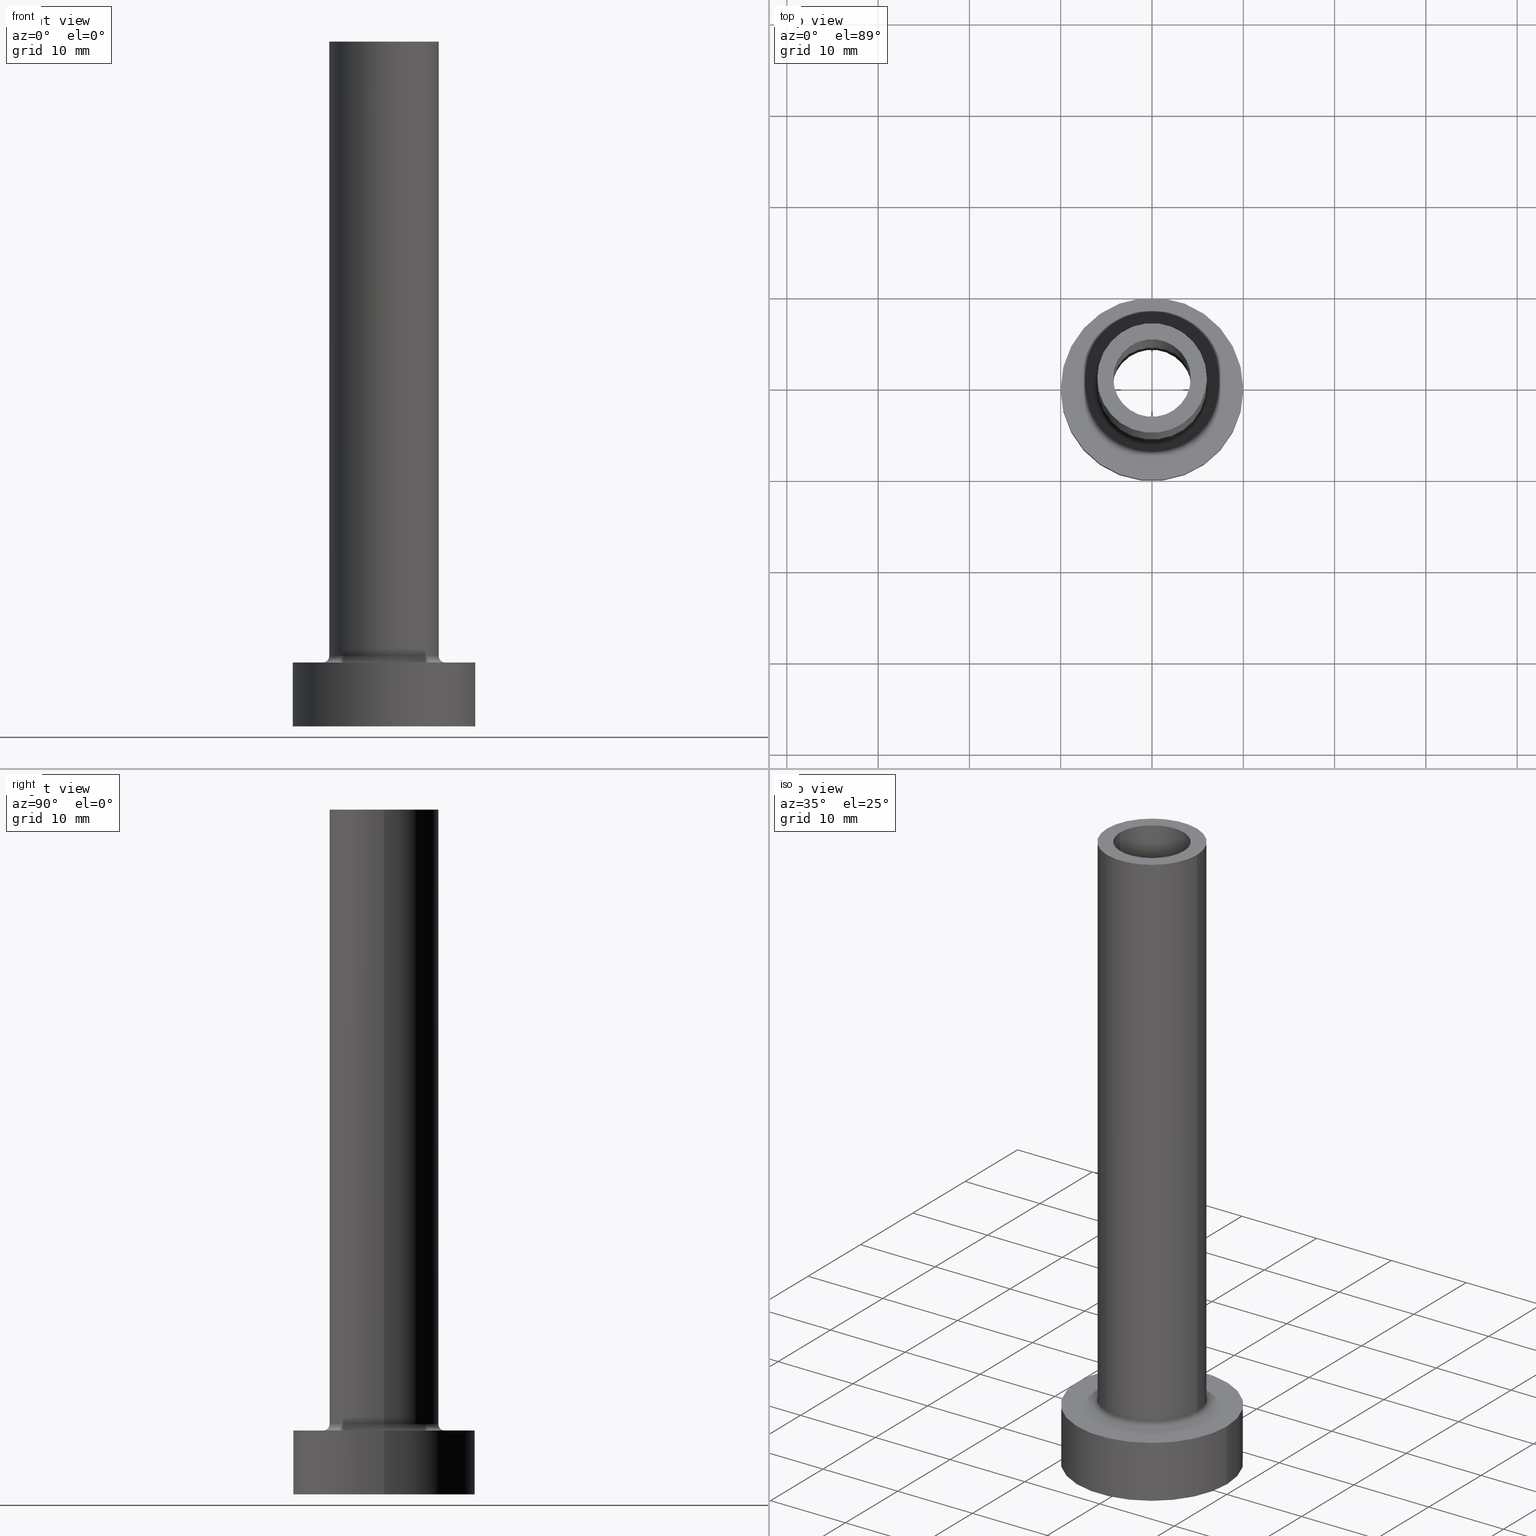
[diagram: canonical four-view strip — front | top / right | iso, engineering-drawing reading convention]
A machine part, canonical four-view strip (front | top / right | iso — engineering-drawing reading convention). The complete STEP part file that produces these views, byte-faithful:
ISO-10303-21;
HEADER;
FILE_DESCRIPTION (( 'STEP AP203' ),
    '1' );
FILE_NAME ('effc.STEP',
    '2023-02-13T07:37:39',
    ( '' ),
    ( '' ),
    'SwSTEP 2.0',
    'SolidWorks 2019',
    '' );
FILE_SCHEMA (( 'CONFIG_CONTROL_DESIGN' ));
ENDSEC;

DATA;
#1 = CLOSED_SHELL ( 'NONE', ( #246, #278, #248, #60, #266, #161, #102, #426, #370, #131, #198, #19, #447, #98 ) ) ;
#2 = CC_DESIGN_APPROVAL ( #348, ( #81 ) ) ;
#3 = EDGE_LOOP ( 'NONE', ( #178, #320, #31, #36 ) ) ;
#4 = CARTESIAN_POINT ( 'NONE',  ( -4.400000000000000355, 0.000000000000000000, 30.00000000000001421 ) ) ;
#5 = EDGE_LOOP ( 'NONE', ( #453, #105, #40, #360 ) ) ;
#6 = ORIENTED_EDGE ( 'NONE', *, *, #69, .T. ) ;
#7 = APPROVAL_DATE_TIME ( #438, #348 ) ;
#8 = FACE_BOUND ( 'NONE', #325, .T. ) ;
#9 = VERTEX_POINT ( 'NONE', #312 ) ;
#10 = EDGE_CURVE ( 'NONE', #145, #291, #234, .T. ) ;
#11 = CARTESIAN_POINT ( 'NONE',  ( 0.000000000000000000, 0.000000000000000000, 42.44507934888325451 ) ) ;
#12 = CIRCLE ( 'NONE', #39, 4.400000000000000355 ) ;
#13 = EDGE_CURVE ( 'NONE', #294, #9, #428, .T. ) ;
#14 = DIRECTION ( 'NONE',  ( 0.000000000000000000, 0.000000000000000000, -1.000000000000000000 ) ) ;
#15 = FACE_BOUND ( 'NONE', #213, .T. ) ;
#16 = EDGE_CURVE ( 'NONE', #368, #27, #338, .T. ) ;
#17 = FACE_BOUND ( 'NONE', #79, .T. ) ;
#18 = CYLINDRICAL_SURFACE ( 'NONE', #247, 4.250000000000000000 ) ;
#19 = ADVANCED_FACE ( 'NONE', ( #207 ), #344, .F. ) ;
#20 = FACE_OUTER_BOUND ( 'NONE', #68, .T. ) ;
#21 = CARTESIAN_POINT ( 'NONE',  ( 0.000000000000000000, 0.000000000000000000, 75.00000000000001421 ) ) ;
#22 = DIRECTION ( 'NONE',  ( 1.000000000000000000, 0.000000000000000000, 0.000000000000000000 ) ) ;
#23 = EDGE_LOOP ( 'NONE', ( #432, #285 ) ) ;
#24 = PERSON_AND_ORGANIZATION_ROLE ( 'design_owner' ) ;
#25 = DIRECTION ( 'NONE',  ( 1.000000000000000000, 0.000000000000000000, 0.000000000000000000 ) ) ;
#26 = CC_DESIGN_PERSON_AND_ORGANIZATION_ASSIGNMENT ( #142, #364, ( #445 ) ) ;
#27 = VERTEX_POINT ( 'NONE', #420 ) ;
#28 = CIRCLE ( 'NONE', #300, 10.00000000000000000 ) ;
#29 = ORIENTED_EDGE ( 'NONE', *, *, #16, .T. ) ;
#30 = DIRECTION ( 'NONE',  ( 1.000000000000000000, 0.000000000000000000, 0.000000000000000000 ) ) ;
#31 = ORIENTED_EDGE ( 'NONE', *, *, #69, .F. ) ;
#32 = PERSON_AND_ORGANIZATION_ROLE ( 'classification_officer' ) ;
#33 = DIRECTION ( 'NONE',  ( 1.000000000000000000, 0.000000000000000000, 0.000000000000000000 ) ) ;
#34 = CC_DESIGN_APPROVAL ( #336, ( #417 ) ) ;
#35 = VERTEX_POINT ( 'NONE', #107 ) ;
#36 = ORIENTED_EDGE ( 'NONE', *, *, #452, .F. ) ;
#37 = COORDINATED_UNIVERSAL_TIME_OFFSET ( 1, 0, .AHEAD. ) ;
#38 = DIRECTION ( 'NONE',  ( 0.000000000000000000, 0.000000000000000000, -1.000000000000000000 ) ) ;
#39 = AXIS2_PLACEMENT_3D ( 'NONE', #455, #215, #25 ) ;
#40 = ORIENTED_EDGE ( 'NONE', *, *, #210, .T. ) ;
#41 = EDGE_CURVE ( 'NONE', #288, #294, #239, .T. ) ;
#42 = DIRECTION ( 'NONE',  ( -0.000000000000000000, -0.000000000000000000, -1.000000000000000000 ) ) ;
#43 = ORIENTED_EDGE ( 'NONE', *, *, #310, .T. ) ;
#44 = DIRECTION ( 'NONE',  ( 0.000000000000000000, 0.000000000000000000, 1.000000000000000000 ) ) ;
#45 = DIRECTION ( 'NONE',  ( -1.000000000000000000, 0.000000000000000000, 0.000000000000000000 ) ) ;
#46 = ORIENTED_EDGE ( 'NONE', *, *, #210, .F. ) ;
#47 = AXIS2_PLACEMENT_3D ( 'NONE', #190, #331, #155 ) ;
#48 = CARTESIAN_POINT ( 'NONE',  ( 4.250000000000000000, 5.204748896376249713E-16, 30.00000000000001421 ) ) ;
#49 = CARTESIAN_POINT ( 'NONE',  ( -6.000000000000000888, 0.000000000000000000, 7.699999999999998401 ) ) ;
#50 = CIRCLE ( 'NONE', #159, 4.250000000000000000 ) ;
#51 = LINE ( 'NONE', #196, #449 ) ;
#52 = DIRECTION ( 'NONE',  ( 0.000000000000000000, 0.000000000000000000, 1.000000000000000000 ) ) ;
#53 = EDGE_CURVE ( 'NONE', #35, #150, #275, .T. ) ;
#54 = FACE_OUTER_BOUND ( 'NONE', #295, .T. ) ;
#55 = CARTESIAN_POINT ( 'NONE',  ( -6.000000000000000888, 0.000000000000000000, 75.00000000000001421 ) ) ;
#56 = LOCAL_TIME ( 8, 37, 39.00000000000000000, #313 ) ;
#57 = DIRECTION ( 'NONE',  ( 0.000000000000000000, 0.000000000000000000, 1.000000000000000000 ) ) ;
#58 = DIRECTION ( 'NONE',  ( 1.000000000000000000, 0.000000000000000000, 0.000000000000000000 ) ) ;
#59 = CIRCLE ( 'NONE', #194, 4.250000000000000000 ) ;
#60 = ADVANCED_FACE ( 'NONE', ( #350 ), #240, .T. ) ;
#61 = PERSON_AND_ORGANIZATION ( #147, #97 ) ;
#62 = DIRECTION ( 'NONE',  ( -1.000000000000000000, 0.000000000000000000, 0.000000000000000000 ) ) ;
#63 = DIRECTION ( 'NONE',  ( 0.000000000000000000, 0.000000000000000000, 1.000000000000000000 ) ) ;
#64 = COORDINATED_UNIVERSAL_TIME_OFFSET ( 1, 0, .AHEAD. ) ;
#65 = AXIS2_PLACEMENT_3D ( 'NONE', #202, #419, #381 ) ;
#66 = DIRECTION ( 'NONE',  ( -0.000000000000000000, -0.000000000000000000, -1.000000000000000000 ) ) ;
#67 = CARTESIAN_POINT ( 'NONE',  ( 0.000000000000000000, 0.000000000000000000, 30.00000000000001421 ) ) ;
#68 = EDGE_LOOP ( 'NONE', ( #333, #461 ) ) ;
#69 = EDGE_CURVE ( 'NONE', #141, #186, #206, .T. ) ;
#70 = PERSON_AND_ORGANIZATION ( #147, #97 ) ;
#71 = ORIENTED_EDGE ( 'NONE', *, *, #357, .F. ) ;
#72 = ORIENTED_EDGE ( 'NONE', *, *, #41, .F. ) ;
#73 = PLANE ( 'NONE',  #322 ) ;
#74 = LOCAL_TIME ( 8, 37, 39.00000000000000000, #37 ) ;
#75 = ORIENTED_EDGE ( 'NONE', *, *, #261, .F. ) ;
#76 = PERSON_AND_ORGANIZATION ( #147, #97 ) ;
#77 = TOROIDAL_SURFACE ( 'NONE', #378, 6.700000000000001066, 0.6999999999999999556 ) ;
#78 = DIRECTION ( 'NONE',  ( 0.000000000000000000, 0.000000000000000000, 1.000000000000000000 ) ) ;
#79 = EDGE_LOOP ( 'NONE', ( #6, #108 ) ) ;
#80 = EDGE_LOOP ( 'NONE', ( #83, #222, #43, #46 ) ) ;
#81 = SECURITY_CLASSIFICATION ( '', '', #179 ) ;
#82 = ORIENTED_EDGE ( 'NONE', *, *, #261, .T. ) ;
#83 = ORIENTED_EDGE ( 'NONE', *, *, #16, .F. ) ;
#84 = LINE ( 'NONE', #401, #122 ) ;
#85 = AXIS2_PLACEMENT_3D ( 'NONE', #158, #90, #30 ) ;
#86 = DIRECTION ( 'NONE',  ( 1.000000000000000000, 0.000000000000000000, 0.000000000000000000 ) ) ;
#87 = PRODUCT_RELATED_PRODUCT_CATEGORY ( 'detail', '', ( #395 ) ) ;
#88 = UNCERTAINTY_MEASURE_WITH_UNIT (LENGTH_MEASURE( 1.000000000000000082E-05 ), #311, 'distance_accuracy_value', 'NONE');
#89 = ORIENTED_EDGE ( 'NONE', *, *, #113, .T. ) ;
#90 = DIRECTION ( 'NONE',  ( 0.000000000000000000, 0.000000000000000000, 1.000000000000000000 ) ) ;
#91 = DIRECTION ( 'NONE',  ( -1.000000000000000000, 0.000000000000000000, 0.000000000000000000 ) ) ;
#92 = CARTESIAN_POINT ( 'NONE',  ( 0.000000000000000000, 0.000000000000000000, 7.000000000000000000 ) ) ;
#93 = DIRECTION ( 'NONE',  ( -0.000000000000000000, -0.000000000000000000, -1.000000000000000000 ) ) ;
#94 = CYLINDRICAL_SURFACE ( 'NONE', #277, 4.250000000000000000 ) ;
#95 = DIRECTION ( 'NONE',  ( -0.000000000000000000, -0.000000000000000000, -1.000000000000000000 ) ) ;
#96 = CARTESIAN_POINT ( 'NONE',  ( 0.000000000000000000, 0.000000000000000000, 7.000000000000000000 ) ) ;
#97 = ORGANIZATION ( 'NEUR�EN�', 'NEUR�EN�', '' ) ;
#98 = ADVANCED_FACE ( 'NONE', ( #204 ), #18, .F. ) ;
#99 = CARTESIAN_POINT ( 'NONE',  ( 0.000000000000000000, 0.000000000000000000, 75.00000000000001421 ) ) ;
#100 = FACE_OUTER_BOUND ( 'NONE', #437, .T. ) ;
#101 = VECTOR ( 'NONE', #211, 1000.000000000000000 ) ;
#102 = ADVANCED_FACE ( 'NONE', ( #267, #402 ), #441, .T. ) ;
#103 = DIRECTION ( 'NONE',  ( 1.000000000000000000, 0.000000000000000000, 0.000000000000000000 ) ) ;
#104 = AXIS2_PLACEMENT_3D ( 'NONE', #106, #287, #103 ) ;
#105 = ORIENTED_EDGE ( 'NONE', *, *, #444, .F. ) ;
#106 = CARTESIAN_POINT ( 'NONE',  ( 0.000000000000000000, 0.000000000000000000, 0.000000000000000000 ) ) ;
#107 = CARTESIAN_POINT ( 'NONE',  ( 6.000000000000000888, 7.347880794884120722E-16, 75.00000000000001421 ) ) ;
#108 = ORIENTED_EDGE ( 'NONE', *, *, #357, .T. ) ;
#109 = DATE_AND_TIME ( #323, #74 ) ;
#110 = CARTESIAN_POINT ( 'NONE',  ( 6.700000000000001066, 0.000000000000000000, 7.699999999999998401 ) ) ;
#111 = DIRECTION ( 'NONE',  ( -1.000000000000000000, 0.000000000000000000, 0.000000000000000000 ) ) ;
#112 = ORIENTED_EDGE ( 'NONE', *, *, #433, .T. ) ;
#113 = EDGE_CURVE ( 'NONE', #259, #127, #273, .T. ) ;
#114 = CARTESIAN_POINT ( 'NONE',  ( 10.00000000000000000, 1.224646799147353256E-15, 7.000000000000000000 ) ) ;
#115 = AXIS2_PLACEMENT_3D ( 'NONE', #162, #429, #111 ) ;
#116 = VERTEX_POINT ( 'NONE', #372 ) ;
#117 = CARTESIAN_POINT ( 'NONE',  ( 4.250000000000000000, 5.204748896376249713E-16, 75.00000000000001421 ) ) ;
#118 = EDGE_CURVE ( 'NONE', #150, #288, #306, .T. ) ;
#119 = ORIENTED_EDGE ( 'NONE', *, *, #444, .T. ) ;
#120 = VERTEX_POINT ( 'NONE', #375 ) ;
#121 = FACE_OUTER_BOUND ( 'NONE', #23, .T. ) ;
#122 = VECTOR ( 'NONE', #304, 1000.000000000000000 ) ;
#123 = ORIENTED_EDGE ( 'NONE', *, *, #330, .F. ) ;
#124 = CIRCLE ( 'NONE', #180, 4.400000000000000355 ) ;
#125 = CARTESIAN_POINT ( 'NONE',  ( -10.00000000000000000, 0.000000000000000000, 7.000000000000000000 ) ) ;
#126 = DIRECTION ( 'NONE',  ( 0.000000000000000000, 0.000000000000000000, -1.000000000000000000 ) ) ;
#127 = VERTEX_POINT ( 'NONE', #200 ) ;
#128 = CARTESIAN_POINT ( 'NONE',  ( 0.000000000000000000, 0.000000000000000000, 7.000000000000000000 ) ) ;
#129 = LINE ( 'NONE', #125, #264 ) ;
#130 = DIRECTION ( 'NONE',  ( 0.000000000000000000, 0.000000000000000000, 1.000000000000000000 ) ) ;
#131 = ADVANCED_FACE ( 'NONE', ( #15, #121 ), #192, .T. ) ;
#132 = CIRCLE ( 'NONE', #315, 6.700000000000001066 ) ;
#133 = APPLICATION_PROTOCOL_DEFINITION ( 'international standard', 'config_control_design', 1994, #260 ) ;
#134 = CARTESIAN_POINT ( 'NONE',  ( 0.000000000000000000, 0.000000000000000000, 75.00000000000001421 ) ) ;
#135 = LOCAL_TIME ( 8, 37, 39.00000000000000000, #384 ) ;
#136 = APPLICATION_PROTOCOL_DEFINITION ( 'international standard', 'config_control_design', 1994, #184 ) ;
#137 = ORIENTED_EDGE ( 'NONE', *, *, #327, .T. ) ;
#138 = PERSON_AND_ORGANIZATION ( #147, #97 ) ;
#139 = CIRCLE ( 'NONE', #286, 10.00000000000000000 ) ;
#140 = DIRECTION ( 'NONE',  ( 0.000000000000000000, 0.000000000000000000, -1.000000000000000000 ) ) ;
#141 = VERTEX_POINT ( 'NONE', #226 ) ;
#142 = PERSON_AND_ORGANIZATION ( #147, #97 ) ;
#143 = DIRECTION ( 'NONE',  ( 0.000000000000000000, 0.000000000000000000, 1.000000000000000000 ) ) ;
#144 = DIRECTION ( 'NONE',  ( 1.224646799147353207E-16, 1.000000000000000000, -0.000000000000000000 ) ) ;
#145 = VERTEX_POINT ( 'NONE', #374 ) ;
#146 = CALENDAR_DATE ( 2023, 13, 2 ) ;
#147 = PERSON ( 'NEUR�EN�', 'NEUR�EN�', 'NEUR�EN�', ('NEUR�EN�'), ('NEUR�EN�'), ('NEUR�EN�') ) ;
#148 = VECTOR ( 'NONE', #341, 1000.000000000000000 ) ;
#149 = EDGE_LOOP ( 'NONE', ( #119, #29 ) ) ;
#150 = VERTEX_POINT ( 'NONE', #55 ) ;
#151 = CARTESIAN_POINT ( 'NONE',  ( 0.000000000000000000, 0.000000000000000000, 7.000000000000000000 ) ) ;
#152 = EDGE_LOOP ( 'NONE', ( #268, #388, #440, #71 ) ) ;
#153 = PERSON_AND_ORGANIZATION ( #147, #97 ) ;
#154 = DIRECTION ( 'NONE',  ( -0.000000000000000000, -0.000000000000000000, -1.000000000000000000 ) ) ;
#155 = DIRECTION ( 'NONE',  ( 1.000000000000000000, 0.000000000000000000, 0.000000000000000000 ) ) ;
#156 = APPROVAL_PERSON_ORGANIZATION ( #416, #269, #382 ) ;
#157 = ORIENTED_EDGE ( 'NONE', *, *, #316, .F. ) ;
#158 = CARTESIAN_POINT ( 'NONE',  ( 0.000000000000000000, 0.000000000000000000, 30.00000000000001421 ) ) ;
#159 = AXIS2_PLACEMENT_3D ( 'NONE', #254, #359, #185 ) ;
#160 = EDGE_CURVE ( 'NONE', #368, #253, #84, .T. ) ;
#161 = ADVANCED_FACE ( 'NONE', ( #367 ), #404, .T. ) ;
#162 = CARTESIAN_POINT ( 'NONE',  ( 0.000000000000000000, 0.000000000000000000, 75.00000000000001421 ) ) ;
#163 = DIRECTION ( 'NONE',  ( 0.000000000000000000, 0.000000000000000000, -1.000000000000000000 ) ) ;
#164 = CYLINDRICAL_SURFACE ( 'NONE', #115, 6.000000000000000888 ) ;
#165 = AXIS2_PLACEMENT_3D ( 'NONE', #451, #66, #386 ) ;
#166 = CARTESIAN_POINT ( 'NONE',  ( 0.000000000000000000, 0.000000000000000000, 0.000000000000000000 ) ) ;
#167 = DIRECTION ( 'NONE',  ( 1.000000000000000000, 0.000000000000000000, 0.000000000000000000 ) ) ;
#168 = PERSON_AND_ORGANIZATION_ROLE ( 'creator' ) ;
#169 = CARTESIAN_POINT ( 'NONE',  ( 0.000000000000000000, 0.000000000000000000, 75.00000000000001421 ) ) ;
#170 = CARTESIAN_POINT ( 'NONE',  ( 0.000000000000000000, 0.000000000000000000, 42.44507934888325451 ) ) ;
#171 = AXIS2_PLACEMENT_3D ( 'NONE', #67, #424, #321 ) ;
#172 = DIRECTION ( 'NONE',  ( 1.000000000000000000, 0.000000000000000000, -0.000000000000000000 ) ) ;
#173 = CARTESIAN_POINT ( 'NONE',  ( 0.000000000000000000, 0.000000000000000000, 7.699999999999998401 ) ) ;
#174 = CC_DESIGN_PERSON_AND_ORGANIZATION_ASSIGNMENT ( #61, #168, ( #417 ) ) ;
#175 = CARTESIAN_POINT ( 'NONE',  ( 0.000000000000000000, 0.000000000000000000, 75.00000000000001421 ) ) ;
#176 = ORIENTED_EDGE ( 'NONE', *, *, #330, .T. ) ;
#177 = EDGE_CURVE ( 'NONE', #262, #186, #51, .T. ) ;
#178 = ORIENTED_EDGE ( 'NONE', *, *, #242, .T. ) ;
#179 = SECURITY_CLASSIFICATION_LEVEL ( 'unclassified' ) ;
#180 = AXIS2_PLACEMENT_3D ( 'NONE', #284, #203, #22 ) ;
#181 = EDGE_CURVE ( 'NONE', #288, #328, #256, .T. ) ;
#182 = ORIENTED_EDGE ( 'NONE', *, *, #228, .F. ) ;
#183 = DIRECTION ( 'NONE',  ( 0.000000000000000000, -1.000000000000000000, 0.000000000000000000 ) ) ;
#184 = APPLICATION_CONTEXT ( 'configuration controlled 3d designs of mechanical parts and assemblies' ) ;
#185 = DIRECTION ( 'NONE',  ( 1.000000000000000000, 0.000000000000000000, 0.000000000000000000 ) ) ;
#186 = VERTEX_POINT ( 'NONE', #48 ) ;
#187 = CARTESIAN_POINT ( 'NONE',  ( 0.000000000000000000, 0.000000000000000000, 0.000000000000000000 ) ) ;
#188 = FACE_OUTER_BOUND ( 'NONE', #80, .T. ) ;
#189 = PERSON_AND_ORGANIZATION ( #147, #97 ) ;
#190 = CARTESIAN_POINT ( 'NONE',  ( 0.000000000000000000, 0.000000000000000000, 7.699999999999998401 ) ) ;
#191 = AXIS2_PLACEMENT_3D ( 'NONE', #170, #140, #460 ) ;
#192 = PLANE ( 'NONE',  #456 ) ;
#193 = MANIFOLD_SOLID_BREP ( 'Odebrat vysunut�m4', #1 ) ;
#194 = AXIS2_PLACEMENT_3D ( 'NONE', #99, #376, #229 ) ;
#195 = CARTESIAN_POINT ( 'NONE',  ( 4.400000000000000355, 5.388445916248354013E-16, 0.000000000000000000 ) ) ;
#196 = CARTESIAN_POINT ( 'NONE',  ( 4.250000000000000000, 5.204748896376249713E-16, 75.00000000000001421 ) ) ;
#197 = DIRECTION ( 'NONE',  ( 1.000000000000000000, 0.000000000000000000, 0.000000000000000000 ) ) ;
#198 = ADVANCED_FACE ( 'NONE', ( #302 ), #314, .F. ) ;
#199 = CARTESIAN_POINT ( 'NONE',  ( 0.000000000000000000, 0.000000000000000000, 75.00000000000001421 ) ) ;
#200 = CARTESIAN_POINT ( 'NONE',  ( -4.400000000000000355, 0.000000000000000000, 0.000000000000000000 ) ) ;
#201 = AXIS2_PLACEMENT_3D ( 'NONE', #21, #280, #167 ) ;
#202 = CARTESIAN_POINT ( 'NONE',  ( 0.000000000000000000, 0.000000000000000000, 30.00000000000001421 ) ) ;
#203 = DIRECTION ( 'NONE',  ( 0.000000000000000000, 0.000000000000000000, 1.000000000000000000 ) ) ;
#204 = FACE_OUTER_BOUND ( 'NONE', #152, .T. ) ;
#205 = DIRECTION ( 'NONE',  ( 1.000000000000000000, 0.000000000000000000, 0.000000000000000000 ) ) ;
#206 = CIRCLE ( 'NONE', #65, 4.250000000000000000 ) ;
#207 = FACE_OUTER_BOUND ( 'NONE', #214, .T. ) ;
#208 = DIRECTION ( 'NONE',  ( 0.000000000000000000, 0.000000000000000000, 1.000000000000000000 ) ) ;
#209 = DIRECTION ( 'NONE',  ( 1.000000000000000000, 0.000000000000000000, 0.000000000000000000 ) ) ;
#210 = EDGE_CURVE ( 'NONE', #27, #116, #129, .T. ) ;
#211 = DIRECTION ( 'NONE',  ( 0.000000000000000000, 0.000000000000000000, -1.000000000000000000 ) ) ;
#212 = CARTESIAN_POINT ( 'NONE',  ( -6.700000000000001066, 8.205133554287267548E-16, 7.699999999999998401 ) ) ;
#213 = EDGE_LOOP ( 'NONE', ( #393, #292 ) ) ;
#214 = EDGE_LOOP ( 'NONE', ( #329, #361, #89, #137 ) ) ;
#215 = DIRECTION ( 'NONE',  ( -0.000000000000000000, -0.000000000000000000, -1.000000000000000000 ) ) ;
#216 = ORIENTED_EDGE ( 'NONE', *, *, #118, .F. ) ;
#217 = AXIS2_PLACEMENT_3D ( 'NONE', #110, #183, #38 ) ;
#218 = EDGE_LOOP ( 'NONE', ( #157, #458 ) ) ;
#219 = FACE_OUTER_BOUND ( 'NONE', #396, .T. ) ;
#220 = ORIENTED_EDGE ( 'NONE', *, *, #10, .T. ) ;
#221 = APPROVAL_DATE_TIME ( #326, #269 ) ;
#222 = ORIENTED_EDGE ( 'NONE', *, *, #160, .T. ) ;
#223 = ORIENTED_EDGE ( 'NONE', *, *, #251, .T. ) ;
#224 = PERSON_AND_ORGANIZATION_ROLE ( 'creator' ) ;
#225 = CARTESIAN_POINT ( 'NONE',  ( -6.700000000000001066, 8.205133554287267548E-16, 6.999999999999999112 ) ) ;
#226 = CARTESIAN_POINT ( 'NONE',  ( -4.250000000000000000, 0.000000000000000000, 30.00000000000001421 ) ) ;
#227 = DIRECTION ( 'NONE',  ( 0.000000000000000000, 0.000000000000000000, 1.000000000000000000 ) ) ;
#228 = EDGE_CURVE ( 'NONE', #150, #35, #439, .T. ) ;
#229 = DIRECTION ( 'NONE',  ( 1.000000000000000000, 0.000000000000000000, 0.000000000000000000 ) ) ;
#230 = LOCAL_TIME ( 8, 37, 39.00000000000000000, #64 ) ;
#231 = DIRECTION ( 'NONE',  ( 1.000000000000000000, 0.000000000000000000, -0.000000000000000000 ) ) ;
#232 = AXIS2_PLACEMENT_3D ( 'NONE', #96, #243, #58 ) ;
#233 = DIRECTION ( 'NONE',  ( 0.000000000000000000, 0.000000000000000000, -1.000000000000000000 ) ) ;
#234 = LINE ( 'NONE', #274, #148 ) ;
#235 = AXIS2_PLACEMENT_3D ( 'NONE', #373, #52, #406 ) ;
#236 = DIRECTION ( 'NONE',  ( -1.000000000000000000, 0.000000000000000000, 0.000000000000000000 ) ) ;
#237 = EDGE_CURVE ( 'NONE', #145, #259, #257, .T. ) ;
#238 = DIRECTION ( 'NONE',  ( -1.000000000000000000, 0.000000000000000000, 0.000000000000000000 ) ) ;
#239 = CIRCLE ( 'NONE', #446, 0.7000000000000000666 ) ;
#240 = CYLINDRICAL_SURFACE ( 'NONE', #271, 6.000000000000000888 ) ;
#241 = CIRCLE ( 'NONE', #340, 10.00000000000000000 ) ;
#242 = EDGE_CURVE ( 'NONE', #120, #262, #422, .T. ) ;
#243 = DIRECTION ( 'NONE',  ( -0.000000000000000000, -0.000000000000000000, -1.000000000000000000 ) ) ;
#244 = CC_DESIGN_PERSON_AND_ORGANIZATION_ASSIGNMENT ( #70, #24, ( #395 ) ) ;
#245 = APPROVAL_STATUS ( 'not_yet_approved' ) ;
#246 = ADVANCED_FACE ( 'NONE', ( #380 ), #94, .F. ) ;
#247 = AXIS2_PLACEMENT_3D ( 'NONE', #169, #126, #238 ) ;
#248 = ADVANCED_FACE ( 'NONE', ( #100 ), #77, .F. ) ;
#249 = CIRCLE ( 'NONE', #165, 4.400000000000000355 ) ;
#250 =( NAMED_UNIT ( * ) PLANE_ANGLE_UNIT ( ) SI_UNIT ( $, .RADIAN. ) );
#251 = EDGE_CURVE ( 'NONE', #291, #127, #12, .T. ) ;
#252 = ORIENTED_EDGE ( 'NONE', *, *, #113, .F. ) ;
#253 = VERTEX_POINT ( 'NONE', #390 ) ;
#254 = CARTESIAN_POINT ( 'NONE',  ( 0.000000000000000000, 0.000000000000000000, 30.00000000000001421 ) ) ;
#255 = EDGE_LOOP ( 'NONE', ( #425, #362, #176, #216 ) ) ;
#256 = CIRCLE ( 'NONE', #47, 6.000000000000000888 ) ;
#257 = CIRCLE ( 'NONE', #85, 4.400000000000000355 ) ;
#258 = DIRECTION ( 'NONE',  ( 1.000000000000000000, 0.000000000000000000, 0.000000000000000000 ) ) ;
#259 = VERTEX_POINT ( 'NONE', #4 ) ;
#260 = APPLICATION_CONTEXT ( 'configuration controlled 3d designs of mechanical parts and assemblies' ) ;
#261 = EDGE_CURVE ( 'NONE', #328, #9, #366, .T. ) ;
#262 = VERTEX_POINT ( 'NONE', #117 ) ;
#263 = ORIENTED_EDGE ( 'NONE', *, *, #13, .F. ) ;
#264 = VECTOR ( 'NONE', #409, 1000.000000000000000 ) ;
#265 = ORIENTED_EDGE ( 'NONE', *, *, #41, .T. ) ;
#266 = ADVANCED_FACE ( 'NONE', ( #188 ), #403, .T. ) ;
#267 = FACE_BOUND ( 'NONE', #391, .T. ) ;
#268 = ORIENTED_EDGE ( 'NONE', *, *, #177, .F. ) ;
#269 = APPROVAL ( #245, 'NEUR�EN�' ) ;
#270 = DIRECTION ( 'NONE',  ( 1.000000000000000000, 0.000000000000000000, -0.000000000000000000 ) ) ;
#271 = AXIS2_PLACEMENT_3D ( 'NONE', #134, #414, #283 ) ;
#272 = APPROVAL_PERSON_ORGANIZATION ( #138, #336, #418 ) ;
#273 = LINE ( 'NONE', #405, #363 ) ;
#274 = CARTESIAN_POINT ( 'NONE',  ( 4.400000000000000355, 5.388445916248354013E-16, 42.44507934888325451 ) ) ;
#275 = CIRCLE ( 'NONE', #383, 6.000000000000000888 ) ;
#276 = DIRECTION ( 'NONE',  ( 1.000000000000000000, 0.000000000000000000, 0.000000000000000000 ) ) ;
#277 = AXIS2_PLACEMENT_3D ( 'NONE', #199, #14, #62 ) ;
#278 = ADVANCED_FACE ( 'NONE', ( #54 ), #334, .F. ) ;
#279 = DATE_TIME_ROLE ( 'creation_date' ) ;
#280 = DIRECTION ( 'NONE',  ( 0.000000000000000000, 0.000000000000000000, 1.000000000000000000 ) ) ;
#281 = DIRECTION ( 'NONE',  ( 0.000000000000000000, 0.000000000000000000, 1.000000000000000000 ) ) ;
#282 = DIRECTION ( 'NONE',  ( 0.000000000000000000, 0.000000000000000000, 1.000000000000000000 ) ) ;
#283 = DIRECTION ( 'NONE',  ( -1.000000000000000000, 0.000000000000000000, 0.000000000000000000 ) ) ;
#284 = CARTESIAN_POINT ( 'NONE',  ( 0.000000000000000000, 0.000000000000000000, 30.00000000000001421 ) ) ;
#285 = ORIENTED_EDGE ( 'NONE', *, *, #53, .T. ) ;
#286 = AXIS2_PLACEMENT_3D ( 'NONE', #297, #44, #436 ) ;
#287 = DIRECTION ( 'NONE',  ( 0.000000000000000000, 0.000000000000000000, 1.000000000000000000 ) ) ;
#288 = VERTEX_POINT ( 'NONE', #49 ) ;
#289 = APPROVAL_STATUS ( 'not_yet_approved' ) ;
#290 = CARTESIAN_POINT ( 'NONE',  ( 6.000000000000000888, 7.347880794884120722E-16, 75.00000000000001421 ) ) ;
#291 = VERTEX_POINT ( 'NONE', #195 ) ;
#292 = ORIENTED_EDGE ( 'NONE', *, *, #394, .F. ) ;
#293 =( GEOMETRIC_REPRESENTATION_CONTEXT ( 3 ) GLOBAL_UNCERTAINTY_ASSIGNED_CONTEXT ( ( #88 ) ) GLOBAL_UNIT_ASSIGNED_CONTEXT ( ( #311, #250, #351 ) ) REPRESENTATION_CONTEXT ( 'NONE', 'WORKASPACE' ) );
#294 = VERTEX_POINT ( 'NONE', #225 ) ;
#295 = EDGE_LOOP ( 'NONE', ( #112, #220, #223, #252 ) ) ;
#296 = DESIGN_CONTEXT ( 'detailed design', #260, 'design' ) ;
#297 = CARTESIAN_POINT ( 'NONE',  ( 0.000000000000000000, 0.000000000000000000, 0.000000000000000000 ) ) ;
#298 = CC_DESIGN_SECURITY_CLASSIFICATION ( #81, ( #445 ) ) ;
#299 = EDGE_CURVE ( 'NONE', #9, #294, #132, .T. ) ;
#300 = AXIS2_PLACEMENT_3D ( 'NONE', #317, #281, #276 ) ;
#301 = ORIENTED_EDGE ( 'NONE', *, *, #339, .F. ) ;
#302 = FACE_OUTER_BOUND ( 'NONE', #365, .T. ) ;
#303 = DIRECTION ( 'NONE',  ( 0.000000000000000000, 0.000000000000000000, -1.000000000000000000 ) ) ;
#304 = DIRECTION ( 'NONE',  ( -0.000000000000000000, -0.000000000000000000, -1.000000000000000000 ) ) ;
#305 = CARTESIAN_POINT ( 'NONE',  ( 0.000000000000000000, 0.000000000000000000, 7.699999999999998401 ) ) ;
#306 = LINE ( 'NONE', #408, #385 ) ;
#307 = CARTESIAN_POINT ( 'NONE',  ( 0.000000000000000000, 0.000000000000000000, 7.699999999999998401 ) ) ;
#308 = CIRCLE ( 'NONE', #400, 6.000000000000000888 ) ;
#309 = FACE_OUTER_BOUND ( 'NONE', #218, .T. ) ;
#310 = EDGE_CURVE ( 'NONE', #253, #116, #241, .T. ) ;
#311 =( LENGTH_UNIT ( ) NAMED_UNIT ( * ) SI_UNIT ( .MILLI., .METRE. ) );
#312 = CARTESIAN_POINT ( 'NONE',  ( 6.700000000000001066, 0.000000000000000000, 6.999999999999999112 ) ) ;
#313 = COORDINATED_UNIVERSAL_TIME_OFFSET ( 1, 0, .AHEAD. ) ;
#314 = TOROIDAL_SURFACE ( 'NONE', #355, 6.700000000000001066, 0.6999999999999999556 ) ;
#315 = AXIS2_PLACEMENT_3D ( 'NONE', #151, #154, #86 ) ;
#316 = EDGE_CURVE ( 'NONE', #116, #253, #139, .T. ) ;
#317 = CARTESIAN_POINT ( 'NONE',  ( 0.000000000000000000, 0.000000000000000000, 7.000000000000000000 ) ) ;
#318 = ORIENTED_EDGE ( 'NONE', *, *, #181, .T. ) ;
#319 = APPROVAL_PERSON_ORGANIZATION ( #189, #348, #392 ) ;
#320 = ORIENTED_EDGE ( 'NONE', *, *, #177, .T. ) ;
#321 = DIRECTION ( 'NONE',  ( 1.000000000000000000, 0.000000000000000000, -0.000000000000000000 ) ) ;
#322 = AXIS2_PLACEMENT_3D ( 'NONE', #166, #208, #172 ) ;
#323 = CALENDAR_DATE ( 2023, 13, 2 ) ;
#324 = LINE ( 'NONE', #290, #457 ) ;
#325 = EDGE_LOOP ( 'NONE', ( #387, #354 ) ) ;
#326 = DATE_AND_TIME ( #345, #230 ) ;
#327 = EDGE_CURVE ( 'NONE', #127, #291, #249, .T. ) ;
#328 = VERTEX_POINT ( 'NONE', #346 ) ;
#329 = ORIENTED_EDGE ( 'NONE', *, *, #10, .F. ) ;
#330 = EDGE_CURVE ( 'NONE', #328, #288, #308, .T. ) ;
#331 = DIRECTION ( 'NONE',  ( 0.000000000000000000, 0.000000000000000000, 1.000000000000000000 ) ) ;
#332 = ORIENTED_EDGE ( 'NONE', *, *, #299, .F. ) ;
#333 = ORIENTED_EDGE ( 'NONE', *, *, #433, .F. ) ;
#334 = CYLINDRICAL_SURFACE ( 'NONE', #415, 4.400000000000000355 ) ;
#335 = AXIS2_PLACEMENT_3D ( 'NONE', #371, #93, #236 ) ;
#336 = APPROVAL ( #389, 'NEUR�EN�' ) ;
#337 = CC_DESIGN_APPROVAL ( #269, ( #445 ) ) ;
#338 = CIRCLE ( 'NONE', #427, 10.00000000000000000 ) ;
#339 = EDGE_CURVE ( 'NONE', #35, #328, #324, .T. ) ;
#340 = AXIS2_PLACEMENT_3D ( 'NONE', #187, #227, #369 ) ;
#341 = DIRECTION ( 'NONE',  ( 0.000000000000000000, 0.000000000000000000, -1.000000000000000000 ) ) ;
#342 = CC_DESIGN_DATE_AND_TIME_ASSIGNMENT ( #450, #279, ( #417 ) ) ;
#343 = CALENDAR_DATE ( 2023, 13, 2 ) ;
#344 = CYLINDRICAL_SURFACE ( 'NONE', #191, 4.400000000000000355 ) ;
#345 = CALENDAR_DATE ( 2023, 13, 2 ) ;
#346 = CARTESIAN_POINT ( 'NONE',  ( 6.000000000000000888, 7.347880794884120722E-16, 7.699999999999998401 ) ) ;
#347 = DIRECTION ( 'NONE',  ( -1.000000000000000000, 1.224646799147353454E-16, 0.000000000000000000 ) ) ;
#348 = APPROVAL ( #289, 'NEUR�EN�' ) ;
#349 = PLANE ( 'NONE',  #171 ) ;
#350 = FACE_OUTER_BOUND ( 'NONE', #255, .T. ) ;
#351 =( NAMED_UNIT ( * ) SI_UNIT ( $, .STERADIAN. ) SOLID_ANGLE_UNIT ( ) );
#352 = LOCAL_TIME ( 8, 37, 39.00000000000000000, #459 ) ;
#353 = DATE_AND_TIME ( #343, #135 ) ;
#354 = ORIENTED_EDGE ( 'NONE', *, *, #251, .F. ) ;
#355 = AXIS2_PLACEMENT_3D ( 'NONE', #305, #442, #197 ) ;
#356 = DATE_TIME_ROLE ( 'classification_date' ) ;
#357 = EDGE_CURVE ( 'NONE', #186, #141, #50, .T. ) ;
#358 = PRODUCT_DEFINITION_SHAPE ( 'NONE', 'NONE',  #417 ) ;
#359 = DIRECTION ( 'NONE',  ( 0.000000000000000000, 0.000000000000000000, 1.000000000000000000 ) ) ;
#360 = ORIENTED_EDGE ( 'NONE', *, *, #316, .T. ) ;
#361 = ORIENTED_EDGE ( 'NONE', *, *, #237, .T. ) ;
#362 = ORIENTED_EDGE ( 'NONE', *, *, #339, .T. ) ;
#363 = VECTOR ( 'NONE', #233, 1000.000000000000000 ) ;
#364 = PERSON_AND_ORGANIZATION_ROLE ( 'design_supplier' ) ;
#365 = EDGE_LOOP ( 'NONE', ( #72, #123, #82, #263 ) ) ;
#366 = CIRCLE ( 'NONE', #217, 0.7000000000000000666 ) ;
#367 = FACE_OUTER_BOUND ( 'NONE', #5, .T. ) ;
#368 = VERTEX_POINT ( 'NONE', #114 ) ;
#369 = DIRECTION ( 'NONE',  ( 1.000000000000000000, 0.000000000000000000, 0.000000000000000000 ) ) ;
#370 = ADVANCED_FACE ( 'NONE', ( #219 ), #164, .T. ) ;
#371 = CARTESIAN_POINT ( 'NONE',  ( 0.000000000000000000, 0.000000000000000000, 7.000000000000000000 ) ) ;
#372 = CARTESIAN_POINT ( 'NONE',  ( -10.00000000000000000, 0.000000000000000000, 0.000000000000000000 ) ) ;
#373 = CARTESIAN_POINT ( 'NONE',  ( 0.000000000000000000, 0.000000000000000000, 75.00000000000001421 ) ) ;
#374 = CARTESIAN_POINT ( 'NONE',  ( 4.400000000000000355, 5.388445916248354013E-16, 30.00000000000001421 ) ) ;
#375 = CARTESIAN_POINT ( 'NONE',  ( -4.250000000000000000, 0.000000000000000000, 75.00000000000001421 ) ) ;
#376 = DIRECTION ( 'NONE',  ( 0.000000000000000000, 0.000000000000000000, 1.000000000000000000 ) ) ;
#377 = AXIS2_PLACEMENT_3D ( 'NONE', #92, #42, #45 ) ;
#378 = AXIS2_PLACEMENT_3D ( 'NONE', #307, #143, #33 ) ;
#379 = APPROVAL_DATE_TIME ( #353, #336 ) ;
#380 = FACE_OUTER_BOUND ( 'NONE', #3, .T. ) ;
#381 = DIRECTION ( 'NONE',  ( 1.000000000000000000, 0.000000000000000000, 0.000000000000000000 ) ) ;
#382 = APPROVAL_ROLE ( '' ) ;
#383 = AXIS2_PLACEMENT_3D ( 'NONE', #175, #78, #209 ) ;
#384 = COORDINATED_UNIVERSAL_TIME_OFFSET ( 1, 0, .AHEAD. ) ;
#385 = VECTOR ( 'NONE', #95, 1000.000000000000000 ) ;
#386 = DIRECTION ( 'NONE',  ( 1.000000000000000000, 0.000000000000000000, 0.000000000000000000 ) ) ;
#387 = ORIENTED_EDGE ( 'NONE', *, *, #327, .F. ) ;
#388 = ORIENTED_EDGE ( 'NONE', *, *, #394, .T. ) ;
#389 = APPROVAL_STATUS ( 'not_yet_approved' ) ;
#390 = CARTESIAN_POINT ( 'NONE',  ( 10.00000000000000000, 1.224646799147353256E-15, 0.000000000000000000 ) ) ;
#391 = EDGE_LOOP ( 'NONE', ( #435, #423 ) ) ;
#392 = APPROVAL_ROLE ( '' ) ;
#393 = ORIENTED_EDGE ( 'NONE', *, *, #242, .F. ) ;
#394 = EDGE_CURVE ( 'NONE', #262, #120, #59, .T. ) ;
#395 = PRODUCT ( 'effc', 'effc', '', ( #421 ) ) ;
#396 = EDGE_LOOP ( 'NONE', ( #301, #182, #398, #318 ) ) ;
#397 = CC_DESIGN_PERSON_AND_ORGANIZATION_ASSIGNMENT ( #153, #224, ( #445 ) ) ;
#398 = ORIENTED_EDGE ( 'NONE', *, *, #118, .T. ) ;
#399 = SHAPE_DEFINITION_REPRESENTATION ( #358, #410 ) ;
#400 = AXIS2_PLACEMENT_3D ( 'NONE', #173, #282, #258 ) ;
#401 = CARTESIAN_POINT ( 'NONE',  ( 10.00000000000000000, 1.224646799147353256E-15, 7.000000000000000000 ) ) ;
#402 = FACE_OUTER_BOUND ( 'NONE', #149, .T. ) ;
#403 = CYLINDRICAL_SURFACE ( 'NONE', #335, 10.00000000000000000 ) ;
#404 = CYLINDRICAL_SURFACE ( 'NONE', #377, 10.00000000000000000 ) ;
#405 = CARTESIAN_POINT ( 'NONE',  ( -4.400000000000000355, 0.000000000000000000, 42.44507934888325451 ) ) ;
#406 = DIRECTION ( 'NONE',  ( 1.000000000000000000, 0.000000000000000000, 0.000000000000000000 ) ) ;
#407 = CARTESIAN_POINT ( 'NONE',  ( 0.000000000000000000, 0.000000000000000000, 75.00000000000001421 ) ) ;
#408 = CARTESIAN_POINT ( 'NONE',  ( -6.000000000000000888, 0.000000000000000000, 75.00000000000001421 ) ) ;
#409 = DIRECTION ( 'NONE',  ( -0.000000000000000000, -0.000000000000000000, -1.000000000000000000 ) ) ;
#410 = ADVANCED_BREP_SHAPE_REPRESENTATION ( 'effc', ( #193, #104 ), #293 ) ;
#411 = CC_DESIGN_PERSON_AND_ORGANIZATION_ASSIGNMENT ( #76, #32, ( #81 ) ) ;
#412 = CARTESIAN_POINT ( 'NONE',  ( 0.000000000000000000, 0.000000000000000000, 7.000000000000000000 ) ) ;
#413 = CARTESIAN_POINT ( 'NONE',  ( -4.250000000000000000, 0.000000000000000000, 75.00000000000001421 ) ) ;
#414 = DIRECTION ( 'NONE',  ( -0.000000000000000000, -0.000000000000000000, -1.000000000000000000 ) ) ;
#415 = AXIS2_PLACEMENT_3D ( 'NONE', #11, #303, #91 ) ;
#416 = PERSON_AND_ORGANIZATION ( #147, #97 ) ;
#417 = PRODUCT_DEFINITION ( 'NEZN�M�', '', #445, #296 ) ;
#418 = APPROVAL_ROLE ( '' ) ;
#419 = DIRECTION ( 'NONE',  ( 0.000000000000000000, 0.000000000000000000, 1.000000000000000000 ) ) ;
#420 = CARTESIAN_POINT ( 'NONE',  ( -10.00000000000000000, 0.000000000000000000, 7.000000000000000000 ) ) ;
#421 = MECHANICAL_CONTEXT ( 'NONE', #184, 'mechanical' ) ;
#422 = CIRCLE ( 'NONE', #201, 4.250000000000000000 ) ;
#423 = ORIENTED_EDGE ( 'NONE', *, *, #13, .T. ) ;
#424 = DIRECTION ( 'NONE',  ( 0.000000000000000000, 0.000000000000000000, 1.000000000000000000 ) ) ;
#425 = ORIENTED_EDGE ( 'NONE', *, *, #53, .F. ) ;
#426 = ADVANCED_FACE ( 'NONE', ( #8, #309 ), #73, .F. ) ;
#427 = AXIS2_PLACEMENT_3D ( 'NONE', #412, #63, #205 ) ;
#428 = CIRCLE ( 'NONE', #232, 6.700000000000001066 ) ;
#429 = DIRECTION ( 'NONE',  ( -0.000000000000000000, -0.000000000000000000, -1.000000000000000000 ) ) ;
#430 = DIRECTION ( 'NONE',  ( -0.000000000000000000, -0.000000000000000000, -1.000000000000000000 ) ) ;
#431 = ORIENTED_EDGE ( 'NONE', *, *, #181, .F. ) ;
#432 = ORIENTED_EDGE ( 'NONE', *, *, #228, .T. ) ;
#433 = EDGE_CURVE ( 'NONE', #259, #145, #124, .T. ) ;
#434 = CC_DESIGN_DATE_AND_TIME_ASSIGNMENT ( #109, #356, ( #81 ) ) ;
#435 = ORIENTED_EDGE ( 'NONE', *, *, #299, .T. ) ;
#436 = DIRECTION ( 'NONE',  ( 1.000000000000000000, 0.000000000000000000, 0.000000000000000000 ) ) ;
#437 = EDGE_LOOP ( 'NONE', ( #431, #265, #332, #75 ) ) ;
#438 = DATE_AND_TIME ( #146, #352 ) ;
#439 = CIRCLE ( 'NONE', #235, 6.000000000000000888 ) ;
#440 = ORIENTED_EDGE ( 'NONE', *, *, #452, .T. ) ;
#441 = PLANE ( 'NONE',  #443 ) ;
#442 = DIRECTION ( 'NONE',  ( 0.000000000000000000, 0.000000000000000000, 1.000000000000000000 ) ) ;
#443 = AXIS2_PLACEMENT_3D ( 'NONE', #128, #57, #231 ) ;
#444 = EDGE_CURVE ( 'NONE', #27, #368, #28, .T. ) ;
#445 = PRODUCT_DEFINITION_FORMATION_WITH_SPECIFIED_SOURCE ( 'LIBOVOLN�', '', #395, .NOT_KNOWN. ) ;
#446 = AXIS2_PLACEMENT_3D ( 'NONE', #212, #144, #347 ) ;
#447 = ADVANCED_FACE ( 'NONE', ( #17, #20 ), #349, .F. ) ;
#448 = CALENDAR_DATE ( 2023, 13, 2 ) ;
#449 = VECTOR ( 'NONE', #163, 1000.000000000000000 ) ;
#450 = DATE_AND_TIME ( #448, #56 ) ;
#451 = CARTESIAN_POINT ( 'NONE',  ( 0.000000000000000000, 0.000000000000000000, 0.000000000000000000 ) ) ;
#452 = EDGE_CURVE ( 'NONE', #120, #141, #454, .T. ) ;
#453 = ORIENTED_EDGE ( 'NONE', *, *, #160, .F. ) ;
#454 = LINE ( 'NONE', #413, #101 ) ;
#455 = CARTESIAN_POINT ( 'NONE',  ( 0.000000000000000000, 0.000000000000000000, 0.000000000000000000 ) ) ;
#456 = AXIS2_PLACEMENT_3D ( 'NONE', #407, #130, #270 ) ;
#457 = VECTOR ( 'NONE', #430, 1000.000000000000000 ) ;
#458 = ORIENTED_EDGE ( 'NONE', *, *, #310, .F. ) ;
#459 = COORDINATED_UNIVERSAL_TIME_OFFSET ( 1, 0, .AHEAD. ) ;
#460 = DIRECTION ( 'NONE',  ( -1.000000000000000000, 0.000000000000000000, 0.000000000000000000 ) ) ;
#461 = ORIENTED_EDGE ( 'NONE', *, *, #237, .F. ) ;
ENDSEC;
END-ISO-10303-21;
